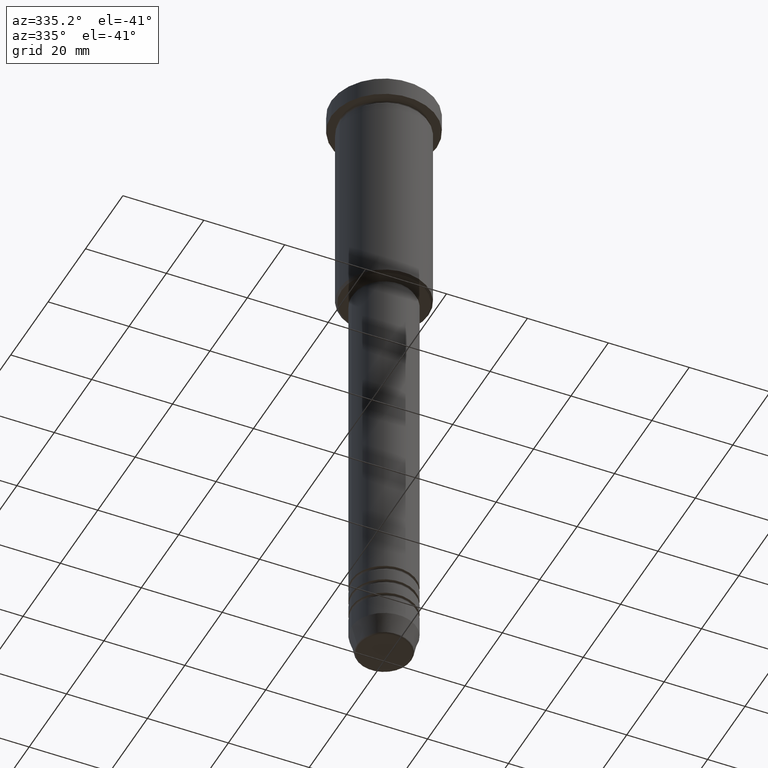
[diagram: clean part render]
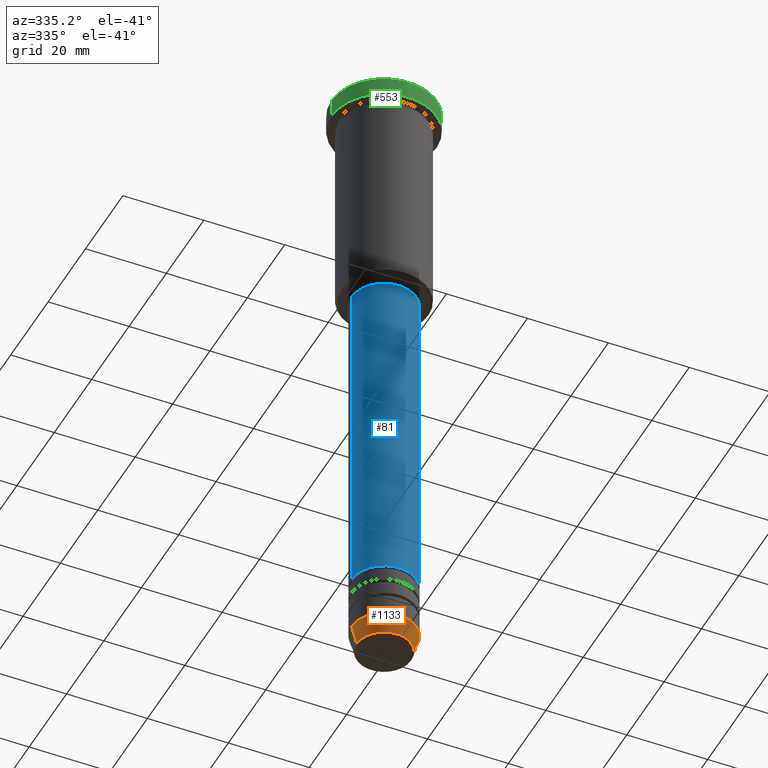
[diagram: same view with three faces highlighted in distinct colors, each labeled with its STEP entity id]
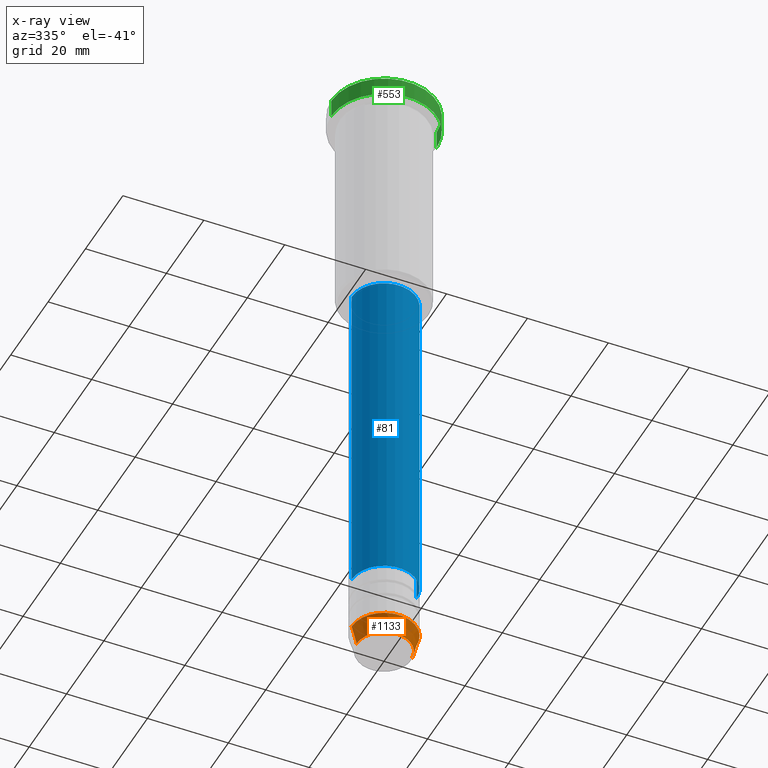
[diagram: x-ray of the same camera — body ghosted, the three highlighted faces saturated]
A machine part, auxiliary view with three faces highlighted in distinct colors.
The next image is the same camera in x-ray (body ghosted, the three faces saturated) — at least one of them is partly hidden behind the body in this view.
Their STEP definitions:

[orange] entity #1133 — the highlighted conical surface has half-angle 15 deg.
#10 = EDGE_CURVE ( 'NONE', #825, #1052, #657, .T. ) ;
#77 = CIRCLE ( 'NONE', #700, 6.759553456999438659 ) ;
#89 = VERTEX_POINT ( 'NONE', #628 ) ;
#187 = DIRECTION ( 'NONE',  ( 1.000000000000000000, 0.000000000000000000, 0.000000000000000000 ) ) ;
#213 = DIRECTION ( 'NONE',  ( -0.2588190451025202399, 3.169619151431758162E-17, 0.9659258262890684232 ) ) ;
#215 = CARTESIAN_POINT ( 'NONE',  ( -8.000000000000000000, 9.797174393178825657E-16, -155.0000000000000000 ) ) ;
#309 = FACE_OUTER_BOUND ( 'NONE', #961, .T. ) ;
#357 = CARTESIAN_POINT ( 'NONE',  ( -6.759553456999439547, 9.037619948979308185E-16, -159.6294095225512706 ) ) ;
#380 = AXIS2_PLACEMENT_3D ( 'NONE', #478, #663, #1031 ) ;
#383 = CARTESIAN_POINT ( 'NONE',  ( -8.000000000000000000, 9.797174393178825657E-16, -155.0000000000000000 ) ) ;
#470 = CIRCLE ( 'NONE', #1140, 8.000000000000000000 ) ;
#478 = CARTESIAN_POINT ( 'NONE',  ( 0.000000000000000000, 0.000000000000000000, -155.0000000000000000 ) ) ;
#559 = ORIENTED_EDGE ( 'NONE', *, *, #10, .F. ) ;
#584 = CARTESIAN_POINT ( 'NONE',  ( 0.000000000000000000, 0.000000000000000000, -159.6294095225512706 ) ) ;
#585 = ORIENTED_EDGE ( 'NONE', *, *, #908, .F. ) ;
#594 = ORIENTED_EDGE ( 'NONE', *, *, #1119, .T. ) ;
#628 = CARTESIAN_POINT ( 'NONE',  ( 6.759553456999438659, 0.000000000000000000, -159.6294095225512706 ) ) ;
#643 = CONICAL_SURFACE ( 'NONE', #380, 8.000000000000000000, 0.2617993877991488527 ) ;
#657 = LINE ( 'NONE', #383, #830 ) ;
#660 = CARTESIAN_POINT ( 'NONE',  ( 8.000000000000000000, 0.000000000000000000, -155.0000000000000000 ) ) ;
#663 = DIRECTION ( 'NONE',  ( -0.000000000000000000, -0.000000000000000000, 1.000000000000000000 ) ) ;
#667 = VERTEX_POINT ( 'NONE', #660 ) ;
#700 = AXIS2_PLACEMENT_3D ( 'NONE', #584, #1049, #1134 ) ;
#800 = EDGE_CURVE ( 'NONE', #89, #667, #886, .T. ) ;
#825 = VERTEX_POINT ( 'NONE', #357 ) ;
#830 = VECTOR ( 'NONE', #213, 999.9999999999998863 ) ;
#834 = VECTOR ( 'NONE', #973, 999.9999999999998863 ) ;
#886 = LINE ( 'NONE', #1151, #834 ) ;
#908 = EDGE_CURVE ( 'NONE', #1052, #667, #470, .T. ) ;
#937 = ORIENTED_EDGE ( 'NONE', *, *, #800, .T. ) ;
#961 = EDGE_LOOP ( 'NONE', ( #559, #594, #937, #585 ) ) ;
#973 = DIRECTION ( 'NONE',  ( 0.2588190451025202399, 0.000000000000000000, 0.9659258262890684232 ) ) ;
#1031 = DIRECTION ( 'NONE',  ( 1.000000000000000000, 0.000000000000000000, 0.000000000000000000 ) ) ;
#1049 = DIRECTION ( 'NONE',  ( -0.000000000000000000, -0.000000000000000000, 1.000000000000000000 ) ) ;
#1052 = VERTEX_POINT ( 'NONE', #215 ) ;
#1105 = CARTESIAN_POINT ( 'NONE',  ( 0.000000000000000000, 0.000000000000000000, -155.0000000000000000 ) ) ;
#1108 = DIRECTION ( 'NONE',  ( -0.000000000000000000, -0.000000000000000000, 1.000000000000000000 ) ) ;
#1119 = EDGE_CURVE ( 'NONE', #825, #89, #77, .T. ) ;
#1133 = ADVANCED_FACE ( 'NONE', ( #309 ), #643, .T. ) ;
#1134 = DIRECTION ( 'NONE',  ( 1.000000000000000000, 0.000000000000000000, 0.000000000000000000 ) ) ;
#1140 = AXIS2_PLACEMENT_3D ( 'NONE', #1105, #1108, #187 ) ;
#1151 = CARTESIAN_POINT ( 'NONE',  ( 8.000000000000000000, 0.000000000000000000, -155.0000000000000000 ) ) ;

[blue] entity #81 — the highlighted cylindrical surface (edge-blend (fillet) strip) has radius 8 mm, axis along (-0, -0, 1).
#15 = AXIS2_PLACEMENT_3D ( 'NONE', #1115, #648, #843 ) ;
#46 = ORIENTED_EDGE ( 'NONE', *, *, #827, .F. ) ;
#60 = ORIENTED_EDGE ( 'NONE', *, *, #911, .T. ) ;
#81 = ADVANCED_FACE ( 'NONE', ( #202 ), #847, .T. ) ;
#114 = AXIS2_PLACEMENT_3D ( 'NONE', #739, #1010, #925 ) ;
#202 = FACE_OUTER_BOUND ( 'NONE', #255, .T. ) ;
#255 = EDGE_LOOP ( 'NONE', ( #1019, #60, #762, #46 ) ) ;
#274 = DIRECTION ( 'NONE',  ( -0.000000000000000000, -0.000000000000000000, 1.000000000000000000 ) ) ;
#347 = VECTOR ( 'NONE', #1096, 1000.000000000000000 ) ;
#348 = CARTESIAN_POINT ( 'NONE',  ( 8.000000000000000000, 0.000000000000000000, -141.0000000000000000 ) ) ;
#369 = LINE ( 'NONE', #724, #347 ) ;
#429 = CARTESIAN_POINT ( 'NONE',  ( -8.000000000000000000, 9.797174393178825657E-16, -141.0000000000000000 ) ) ;
#468 = VERTEX_POINT ( 'NONE', #348 ) ;
#488 = AXIS2_PLACEMENT_3D ( 'NONE', #538, #909, #713 ) ;
#535 = CARTESIAN_POINT ( 'NONE',  ( 8.000000000000000000, 0.000000000000000000, 0.000000000000000000 ) ) ;
#538 = CARTESIAN_POINT ( 'NONE',  ( 0.000000000000000000, 0.000000000000000000, -57.00000000000001421 ) ) ;
#623 = CIRCLE ( 'NONE', #114, 8.000000000000000000 ) ;
#648 = DIRECTION ( 'NONE',  ( -0.000000000000000000, -0.000000000000000000, 1.000000000000000000 ) ) ;
#713 = DIRECTION ( 'NONE',  ( 1.000000000000000000, 0.000000000000000000, 0.000000000000000000 ) ) ;
#724 = CARTESIAN_POINT ( 'NONE',  ( -8.000000000000000000, 9.797174393178825657E-16, 0.000000000000000000 ) ) ;
#739 = CARTESIAN_POINT ( 'NONE',  ( 0.000000000000000000, 0.000000000000000000, -141.0000000000000000 ) ) ;
#758 = EDGE_CURVE ( 'NONE', #468, #822, #982, .T. ) ;
#762 = ORIENTED_EDGE ( 'NONE', *, *, #758, .T. ) ;
#803 = CARTESIAN_POINT ( 'NONE',  ( 8.000000000000000000, 0.000000000000000000, -57.00000000000001421 ) ) ;
#822 = VERTEX_POINT ( 'NONE', #803 ) ;
#823 = VERTEX_POINT ( 'NONE', #429 ) ;
#827 = EDGE_CURVE ( 'NONE', #1109, #822, #1003, .T. ) ;
#843 = DIRECTION ( 'NONE',  ( 1.000000000000000000, 0.000000000000000000, 0.000000000000000000 ) ) ;
#847 = CYLINDRICAL_SURFACE ( 'NONE', #15, 8.000000000000000000 ) ;
#909 = DIRECTION ( 'NONE',  ( -0.000000000000000000, -0.000000000000000000, 1.000000000000000000 ) ) ;
#911 = EDGE_CURVE ( 'NONE', #823, #468, #623, .T. ) ;
#925 = DIRECTION ( 'NONE',  ( 1.000000000000000000, 0.000000000000000000, 0.000000000000000000 ) ) ;
#950 = VECTOR ( 'NONE', #274, 1000.000000000000000 ) ;
#982 = LINE ( 'NONE', #535, #950 ) ;
#1003 = CIRCLE ( 'NONE', #488, 8.000000000000000000 ) ;
#1009 = EDGE_CURVE ( 'NONE', #823, #1109, #369, .T. ) ;
#1010 = DIRECTION ( 'NONE',  ( -0.000000000000000000, -0.000000000000000000, 1.000000000000000000 ) ) ;
#1019 = ORIENTED_EDGE ( 'NONE', *, *, #1009, .F. ) ;
#1054 = CARTESIAN_POINT ( 'NONE',  ( -8.000000000000000000, 9.797174393178825657E-16, -57.00000000000001421 ) ) ;
#1096 = DIRECTION ( 'NONE',  ( -0.000000000000000000, -0.000000000000000000, 1.000000000000000000 ) ) ;
#1109 = VERTEX_POINT ( 'NONE', #1054 ) ;
#1115 = CARTESIAN_POINT ( 'NONE',  ( 0.000000000000000000, 0.000000000000000000, 0.000000000000000000 ) ) ;

[green] entity #553 — the highlighted cylindrical surface (partial cylindrical patch) has radius 13 mm, axis along (-0, -0, 1).
#97 = VERTEX_POINT ( 'NONE', #838 ) ;
#103 = DIRECTION ( 'NONE',  ( 0.000000000000000000, 0.000000000000000000, -1.000000000000000000 ) ) ;
#106 = LINE ( 'NONE', #1018, #270 ) ;
#140 = EDGE_CURVE ( 'NONE', #497, #97, #694, .T. ) ;
#201 = CARTESIAN_POINT ( 'NONE',  ( 13.00000000000000000, 0.000000000000000000, -0.4999999999999935052 ) ) ;
#228 = CARTESIAN_POINT ( 'NONE',  ( 13.00000000000000000, 0.000000000000000000, 0.000000000000000000 ) ) ;
#230 = VERTEX_POINT ( 'NONE', #668 ) ;
#270 = VECTOR ( 'NONE', #286, 1000.000000000000000 ) ;
#286 = DIRECTION ( 'NONE',  ( -0.000000000000000000, -0.000000000000000000, 1.000000000000000000 ) ) ;
#294 = DIRECTION ( 'NONE',  ( 1.000000000000000000, 0.000000000000000000, 0.000000000000000000 ) ) ;
#313 = ORIENTED_EDGE ( 'NONE', *, *, #140, .T. ) ;
#375 = DIRECTION ( 'NONE',  ( -0.000000000000000000, -0.000000000000000000, 1.000000000000000000 ) ) ;
#452 = AXIS2_PLACEMENT_3D ( 'NONE', #556, #375, #294 ) ;
#497 = VERTEX_POINT ( 'NONE', #201 ) ;
#504 = CIRCLE ( 'NONE', #452, 13.00000000000000000 ) ;
#513 = EDGE_CURVE ( 'NONE', #1174, #230, #504, .T. ) ;
#546 = CYLINDRICAL_SURFACE ( 'NONE', #985, 13.00000000000000000 ) ;
#552 = CARTESIAN_POINT ( 'NONE',  ( 0.000000000000000000, 0.000000000000000000, -0.4999999999999935052 ) ) ;
#553 = ADVANCED_FACE ( 'NONE', ( #846 ), #546, .T. ) ;
#556 = CARTESIAN_POINT ( 'NONE',  ( 0.000000000000000000, 0.000000000000000000, -5.000000000000000000 ) ) ;
#568 = ORIENTED_EDGE ( 'NONE', *, *, #920, .F. ) ;
#636 = AXIS2_PLACEMENT_3D ( 'NONE', #552, #103, #1107 ) ;
#650 = CARTESIAN_POINT ( 'NONE',  ( 0.000000000000000000, 0.000000000000000000, 0.000000000000000000 ) ) ;
#668 = CARTESIAN_POINT ( 'NONE',  ( 13.00000000000000000, 0.000000000000000000, -5.000000000000000000 ) ) ;
#694 = CIRCLE ( 'NONE', #636, 13.00000000000000000 ) ;
#797 = EDGE_LOOP ( 'NONE', ( #568, #815, #842, #313 ) ) ;
#815 = ORIENTED_EDGE ( 'NONE', *, *, #513, .T. ) ;
#836 = VECTOR ( 'NONE', #954, 1000.000000000000000 ) ;
#838 = CARTESIAN_POINT ( 'NONE',  ( -13.00000000000000000, 1.592040838891559095E-15, -0.4999999999999935052 ) ) ;
#842 = ORIENTED_EDGE ( 'NONE', *, *, #1182, .T. ) ;
#846 = FACE_OUTER_BOUND ( 'NONE', #797, .T. ) ;
#919 = DIRECTION ( 'NONE',  ( 1.000000000000000000, 0.000000000000000000, 0.000000000000000000 ) ) ;
#920 = EDGE_CURVE ( 'NONE', #1174, #97, #106, .T. ) ;
#946 = CARTESIAN_POINT ( 'NONE',  ( -13.00000000000000000, 1.592040838891559095E-15, -5.000000000000000000 ) ) ;
#954 = DIRECTION ( 'NONE',  ( -0.000000000000000000, -0.000000000000000000, 1.000000000000000000 ) ) ;
#985 = AXIS2_PLACEMENT_3D ( 'NONE', #650, #1014, #919 ) ;
#1014 = DIRECTION ( 'NONE',  ( -0.000000000000000000, -0.000000000000000000, 1.000000000000000000 ) ) ;
#1018 = CARTESIAN_POINT ( 'NONE',  ( -13.00000000000000000, 1.592040838891559095E-15, 0.000000000000000000 ) ) ;
#1036 = LINE ( 'NONE', #228, #836 ) ;
#1107 = DIRECTION ( 'NONE',  ( 1.000000000000000000, 0.000000000000000000, 0.000000000000000000 ) ) ;
#1174 = VERTEX_POINT ( 'NONE', #946 ) ;
#1182 = EDGE_CURVE ( 'NONE', #230, #497, #1036, .T. ) ;